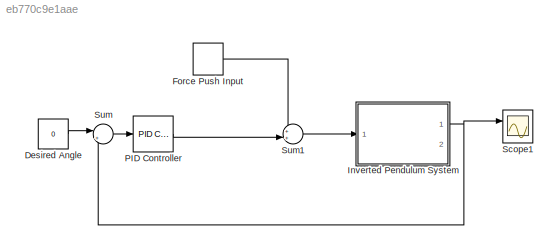
MODEL slx_eb770c9e1aae
KIND model
CONFIG AbsTol = auto
CONFIG EnableMultiTasking = off
CONFIG FixedStep = auto
CONFIG MaxStep = auto
CONFIG MinStep = auto
CONFIG RelTol = 1e-3
CONFIG SampleTimeConstraint = Unconstrained
CONFIG Solver = VariableStepAuto
CONFIG SolverName = VariableStepAuto
CONFIG StartTime = 0.0
CONFIG StopTime = 5
BLOCK [Constant] Desired Angle
  Value = 0
BLOCK [DiscretePulseGenerator] Force Push Input
  Amplitude = 1000
  Period = 10
  Ports = [0, 1]
  PulseType = Time based
  PulseWidth = 0.01
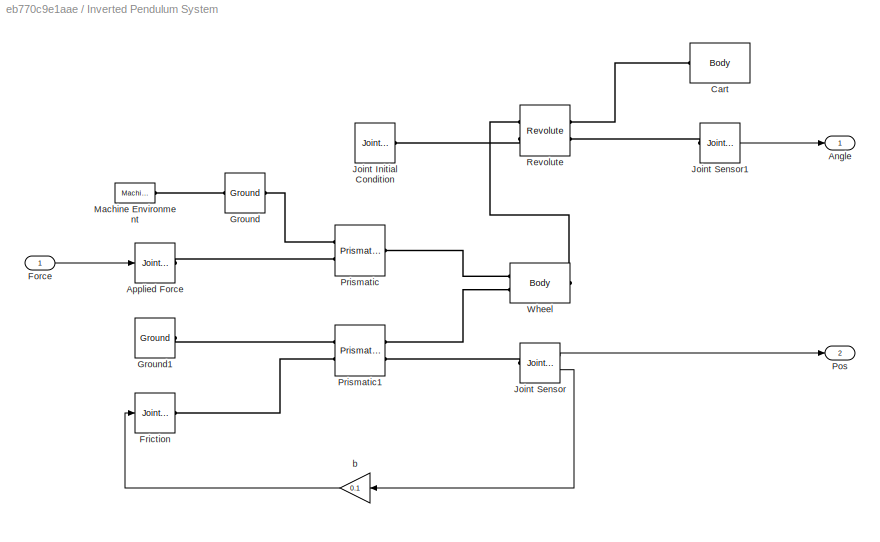
BLOCK [SubSystem] Inverted Pendulum System
  Ports = [1, 2]
  RequestExecContextInheritance = off
  Variant = off
BLOCK [Outport] Inverted Pendulum System/Angle
  IconDisplay = Port number
BLOCK [Reference] Inverted Pendulum System/Applied Force  REF=mblibv1/Sensors & 
Actuators/Joint Actuator
  Ports = [1, 0, 0, 0, 0, 0, 1]
  SourceBlock = mblibv1/Sensors & \nActuators/Joint Actuator
  SourceProductBaseCode = MS
  SourceProductName = Simscape Multibody
  SourceType = Joint Actuator
BLOCK [Reference] Inverted Pendulum System/Cart  REF=mblibv1/Bodies/Body
  Ports = [0, 0, 0, 0, 0, 1]
  SourceBlock = mblibv1/Bodies/Body
  SourceProductBaseCode = MS
  SourceProductName = Simscape Multibody
  SourceType = Body
BLOCK [Inport] Inverted Pendulum System/Force
  IconDisplay = Port number
BLOCK [Reference] Inverted Pendulum System/Friction  REF=mblibv1/Sensors & 
Actuators/Joint Actuator
  Ports = [1, 0, 0, 0, 0, 0, 1]
  SourceBlock = mblibv1/Sensors & \nActuators/Joint Actuator
  SourceProductBaseCode = MS
  SourceProductName = Simscape Multibody
  SourceType = Joint Actuator
BLOCK [Reference] Inverted Pendulum System/Ground  REF=mblibv1/Bodies/Ground
  Ports = [0, 0, 0, 0, 0, 1, 1]
  SourceBlock = mblibv1/Bodies/Ground
  SourceProductBaseCode = MS
  SourceProductName = Simscape Multibody
  SourceType = Ground
  UserDataPersistent = on
BLOCK [Reference] Inverted Pendulum System/Ground1  REF=mblibv1/Bodies/Ground
  Ports = [0, 0, 0, 0, 0, 0, 1]
  SourceBlock = mblibv1/Bodies/Ground
  SourceProductBaseCode = MS
  SourceProductName = Simscape Multibody
  SourceType = Ground
  UserDataPersistent = on
BLOCK [Reference] Inverted Pendulum System/Joint Initial Condition  REF=mblibv1/Sensors & 
Actuators/Joint Initial Condition
  Ports = [0, 0, 0, 0, 0, 0, 1]
  SourceBlock = mblibv1/Sensors & \nActuators/Joint Initial Condition
  SourceProductBaseCode = MS
  SourceProductName = Simscape Multibody
  SourceType = Joint Initial Condition
BLOCK [Reference] Inverted Pendulum System/Joint Sensor  REF=mblibv1/Sensors & 
Actuators/Joint Sensor
  Ports = [0, 2, 0, 0, 0, 1]
  SourceBlock = mblibv1/Sensors & \nActuators/Joint Sensor
  SourceProductBaseCode = MS
  SourceProductName = Simscape Multibody
  SourceType = Joint Sensor
BLOCK [Reference] Inverted Pendulum System/Joint Sensor1  REF=mblibv1/Sensors & 
Actuators/Joint Sensor
  Ports = [0, 1, 0, 0, 0, 1]
  SourceBlock = mblibv1/Sensors & \nActuators/Joint Sensor
  SourceProductBaseCode = MS
  SourceProductName = Simscape Multibody
  SourceType = Joint Sensor
BLOCK [Reference] Inverted Pendulum System/Machine Environment  REF=mblibv1/Bodies/Machine
Environment
  Ports = [0, 0, 0, 0, 0, 0, 1]
  SourceBlock = mblibv1/Bodies/Machine\nEnvironment
  SourceProductBaseCode = MS
  SourceProductName = Simscape Multibody
  SourceType = Machine Environment
BLOCK [Outport] Inverted Pendulum System/Pos
  IconDisplay = Port number
  Port = 2
BLOCK [Reference] Inverted Pendulum System/Prismatic  REF=mblibv1/Joints/Prismatic
  Ports = [0, 0, 0, 0, 0, 2, 1]
  SourceBlock = mblibv1/Joints/Prismatic
  SourceProductBaseCode = MS
  SourceProductName = Simscape Multibody
  SourceType = Prismatic
BLOCK [Reference] Inverted Pendulum System/Prismatic1  REF=mblibv1/Joints/Prismatic
  Ports = [0, 0, 0, 0, 0, 2, 2]
  SourceBlock = mblibv1/Joints/Prismatic
  SourceProductBaseCode = MS
  SourceProductName = Simscape Multibody
  SourceType = Prismatic
BLOCK [Reference] Inverted Pendulum System/Revolute  REF=mblibv1/Joints/Revolute
  Ports = [0, 0, 0, 0, 0, 2, 2]
  SourceBlock = mblibv1/Joints/Revolute
  SourceProductBaseCode = MS
  SourceProductName = Simscape Multibody
  SourceType = Revolute
BLOCK [Reference] Inverted Pendulum System/Wheel  REF=mblibv1/Bodies/Body
  Ports = [0, 0, 0, 0, 0, 2, 1]
  SourceBlock = mblibv1/Bodies/Body
  SourceProductBaseCode = MS
  SourceProductName = Simscape Multibody
  SourceType = Body
BLOCK [Gain] Inverted Pendulum System/b
  Gain = 0.1
  OutDataTypeStr = Inherit: Inherit via internal rule
  ParamDataTypeStr = Inherit: Inherit via internal rule
  SaturateOnIntegerOverflow = off
BLOCK [Reference] PID Controller  REF=simulink/Continuous/PID Controller
  Ports = [1, 1]
  SourceBlock = simulink/Continuous/PID Controller
  SourceProductBaseCode = SL
  SourceProductName = Simulink
  SourceType = PID 1dof
BLOCK [Scope] Scope1
  NumInputPorts = 2
  Ports = [2]
  ScopeSpecificationString = Simulink.scopes.TimeScopeBlockCfg('CurrentConfiguration', extmgr.ConfigurationSet(extmgr.Configuration('Core','General UI',true,'FigureColor',[1 1 1]),extmgr.Configuration('Core','Source UI',true),extmgr.Configuration('Sources','WiredSimulink',true,'DataLoggingVariableName','ScopeData1'),extmgr.Configuration('Visuals','Time Domain',true,'SerializedDisplays',{struct('MinYLimReal','-3.9268','MaxYLim...<+1715ch>
BLOCK [Sum] Sum
  IconShape = round
  InputSameDT = off
  Inputs = |+-
  OutDataTypeStr = Inherit: Inherit via internal rule
  Ports = [2, 1]
  SaturateOnIntegerOverflow = off
BLOCK [Sum] Sum1
  IconShape = round
  InputSameDT = off
  Inputs = ++|
  OutDataTypeStr = Inherit: Inherit via internal rule
  Ports = [2, 1]
  SaturateOnIntegerOverflow = off
LINE Desired Angle:1 -> Sum:1
LINE Force Push Input:1 -> Sum1:1
LINE Inverted Pendulum System/Force:1 -> Inverted Pendulum System/Applied Force:1
LINE Inverted Pendulum System/Joint Sensor1:1 -> Inverted Pendulum System/Angle:1
LINE Inverted Pendulum System/Joint Sensor:1 -> Inverted Pendulum System/Pos:1
LINE Inverted Pendulum System/Joint Sensor:2 -> Inverted Pendulum System/b:1
LINE Inverted Pendulum System/b:1 -> Inverted Pendulum System/Friction:1
NET Inverted Pendulum System:1 -> Scope1:1, Sum:2
LINE PID Controller:1 -> Sum1:2
LINE Sum1:1 -> Inverted Pendulum System:1
LINE Sum:1 -> PID Controller:1
PLINE Inverted Pendulum System/Applied Force:RConn1 -- Inverted Pendulum System/Prismatic:LConn2
PLINE Inverted Pendulum System/Cart:LConn1 -- Inverted Pendulum System/Revolute:RConn1
PLINE Inverted Pendulum System/Friction:RConn1 -- Inverted Pendulum System/Prismatic1:LConn2
PLINE Inverted Pendulum System/Ground1:RConn1 -- Inverted Pendulum System/Prismatic1:LConn1
PLINE Inverted Pendulum System/Ground:LConn1 -- Inverted Pendulum System/Machine Environment:RConn1
PLINE Inverted Pendulum System/Ground:RConn1 -- Inverted Pendulum System/Prismatic:LConn1
PLINE Inverted Pendulum System/Joint Initial Condition:RConn1 -- Inverted Pendulum System/Revolute:LConn2
PLINE Inverted Pendulum System/Joint Sensor1:LConn1 -- Inverted Pendulum System/Revolute:RConn2
PLINE Inverted Pendulum System/Joint Sensor:LConn1 -- Inverted Pendulum System/Prismatic1:RConn2
PLINE Inverted Pendulum System/Prismatic1:RConn1 -- Inverted Pendulum System/Wheel:LConn2
PLINE Inverted Pendulum System/Prismatic:RConn1 -- Inverted Pendulum System/Wheel:LConn1
PLINE Inverted Pendulum System/Revolute:LConn1 -- Inverted Pendulum System/Wheel:RConn1
note: NET lines group one-source signal fan-out (src -> all destinations, sorted); 1:1 wires keep LINE
